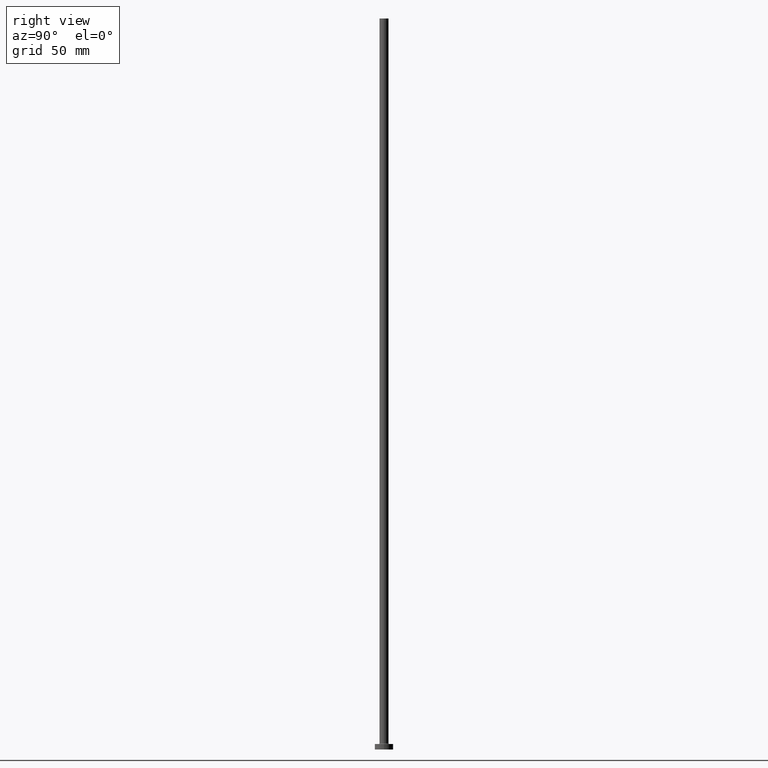
[diagram: clean part render]
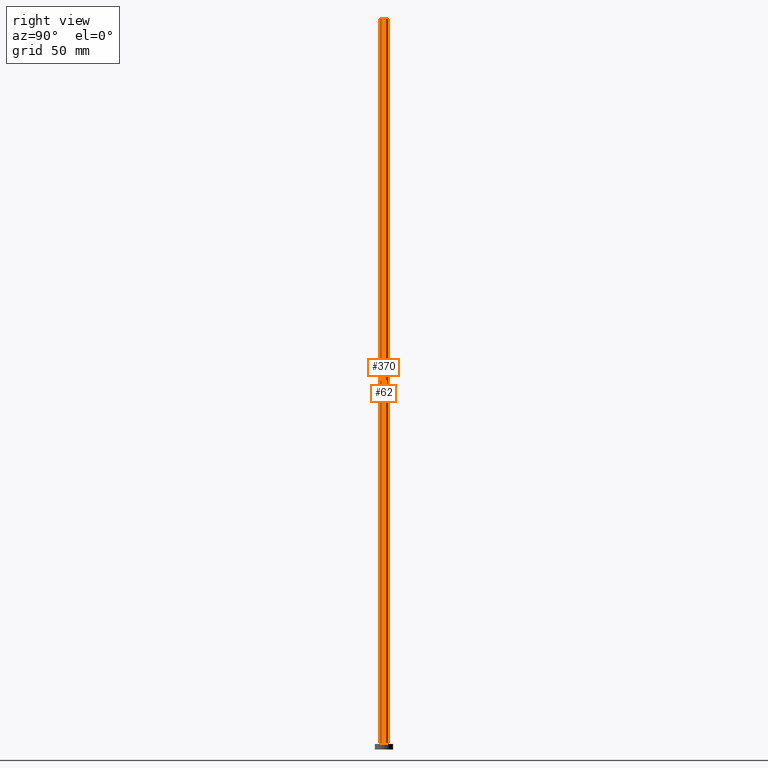
[diagram: same view with one multi-face feature highlighted, each face labeled with its STEP entity id]
A machine part, right view. The highlighted faces form ONE feature: a constant-radius fillet chain: 2 tangent blend faces with common blend radius 2.5 mm. The faces share edges in the B-rep.
Their STEP definitions:
[1] entity #370 (Cylinder):
#6 = VERTEX_POINT ( 'NONE', #350 ) ;
#7 = EDGE_CURVE ( 'NONE', #391, #154, #17, .T. ) ;
#17 = LINE ( 'NONE', #344, #316 ) ;
#25 = FACE_OUTER_BOUND ( 'NONE', #366, .T. ) ;
#26 = CIRCLE ( 'NONE', #170, 2.500000000000000000 ) ;
#27 = CARTESIAN_POINT ( 'NONE',  ( 2.500000000000000000, 3.061616997868383141E-16, 3.300000000000025135 ) ) ;
#45 = ORIENTED_EDGE ( 'NONE', *, *, #438, .T. ) ;
#61 = DIRECTION ( 'NONE',  ( 1.000000000000000000, 0.000000000000000000, 0.000000000000000000 ) ) ;
#69 = DIRECTION ( 'NONE',  ( -0.000000000000000000, -0.000000000000000000, -1.000000000000000000 ) ) ;
#72 = CARTESIAN_POINT ( 'NONE',  ( 0.000000000000000000, 0.000000000000000000, 400.0000000000000000 ) ) ;
#74 = ORIENTED_EDGE ( 'NONE', *, *, #283, .T. ) ;
#76 = DIRECTION ( 'NONE',  ( 1.000000000000000000, 0.000000000000000000, 0.000000000000000000 ) ) ;
#101 = CARTESIAN_POINT ( 'NONE',  ( 0.000000000000000000, 0.000000000000000000, 400.0000000000000000 ) ) ;
#108 = DIRECTION ( 'NONE',  ( -1.000000000000000000, 0.000000000000000000, 0.000000000000000000 ) ) ;
#136 = CARTESIAN_POINT ( 'NONE',  ( 2.500000000000000000, 3.061616997868383141E-16, 400.0000000000000000 ) ) ;
#154 = VERTEX_POINT ( 'NONE', #27 ) ;
#170 = AXIS2_PLACEMENT_3D ( 'NONE', #72, #291, #76 ) ;
#174 = EDGE_CURVE ( 'NONE', #374, #391, #26, .T. ) ;
#177 = ORIENTED_EDGE ( 'NONE', *, *, #7, .F. ) ;
#180 = DIRECTION ( 'NONE',  ( -0.000000000000000000, -0.000000000000000000, -1.000000000000000000 ) ) ;
#197 = AXIS2_PLACEMENT_3D ( 'NONE', #449, #214, #61 ) ;
#200 = LINE ( 'NONE', #388, #281 ) ;
#205 = DIRECTION ( 'NONE',  ( -0.000000000000000000, -0.000000000000000000, -1.000000000000000000 ) ) ;
#211 = CIRCLE ( 'NONE', #197, 2.500000000000000000 ) ;
#214 = DIRECTION ( 'NONE',  ( 0.000000000000000000, 0.000000000000000000, 1.000000000000000000 ) ) ;
#249 = AXIS2_PLACEMENT_3D ( 'NONE', #101, #180, #108 ) ;
#257 = CARTESIAN_POINT ( 'NONE',  ( -2.500000000000000000, 0.000000000000000000, 400.0000000000000000 ) ) ;
#281 = VECTOR ( 'NONE', #69, 1000.000000000000000 ) ;
#283 = EDGE_CURVE ( 'NONE', #374, #6, #200, .T. ) ;
#291 = DIRECTION ( 'NONE',  ( 0.000000000000000000, 0.000000000000000000, 1.000000000000000000 ) ) ;
#316 = VECTOR ( 'NONE', #205, 1000.000000000000000 ) ;
#344 = CARTESIAN_POINT ( 'NONE',  ( 2.500000000000000000, 3.061616997868383141E-16, 400.0000000000000000 ) ) ;
#350 = CARTESIAN_POINT ( 'NONE',  ( -2.500000000000000000, 0.000000000000000000, 3.300000000000025135 ) ) ;
#366 = EDGE_LOOP ( 'NONE', ( #177, #397, #74, #45 ) ) ;
#370 = ADVANCED_FACE ( 'NONE', ( #25 ), #392, .T. ) ;
#374 = VERTEX_POINT ( 'NONE', #257 ) ;
#388 = CARTESIAN_POINT ( 'NONE',  ( -2.500000000000000000, 0.000000000000000000, 400.0000000000000000 ) ) ;
#391 = VERTEX_POINT ( 'NONE', #136 ) ;
#392 = CYLINDRICAL_SURFACE ( 'NONE', #249, 2.500000000000000000 ) ;
#397 = ORIENTED_EDGE ( 'NONE', *, *, #174, .F. ) ;
#438 = EDGE_CURVE ( 'NONE', #6, #154, #211, .T. ) ;
#449 = CARTESIAN_POINT ( 'NONE',  ( 0.000000000000000000, 0.000000000000000000, 3.300000000000025135 ) ) ;
[2] entity #62 (Cylinder):
#6 = VERTEX_POINT ( 'NONE', #350 ) ;
#7 = EDGE_CURVE ( 'NONE', #391, #154, #17, .T. ) ;
#17 = LINE ( 'NONE', #344, #316 ) ;
#19 = ORIENTED_EDGE ( 'NONE', *, *, #297, .T. ) ;
#27 = CARTESIAN_POINT ( 'NONE',  ( 2.500000000000000000, 3.061616997868383141E-16, 3.300000000000025135 ) ) ;
#40 = ORIENTED_EDGE ( 'NONE', *, *, #335, .F. ) ;
#49 = CYLINDRICAL_SURFACE ( 'NONE', #413, 2.500000000000000000 ) ;
#58 = CIRCLE ( 'NONE', #288, 2.500000000000000000 ) ;
#62 = ADVANCED_FACE ( 'NONE', ( #233 ), #49, .T. ) ;
#69 = DIRECTION ( 'NONE',  ( -0.000000000000000000, -0.000000000000000000, -1.000000000000000000 ) ) ;
#98 = DIRECTION ( 'NONE',  ( 0.000000000000000000, 0.000000000000000000, 1.000000000000000000 ) ) ;
#136 = CARTESIAN_POINT ( 'NONE',  ( 2.500000000000000000, 3.061616997868383141E-16, 400.0000000000000000 ) ) ;
#154 = VERTEX_POINT ( 'NONE', #27 ) ;
#161 = CIRCLE ( 'NONE', #216, 2.500000000000000000 ) ;
#164 = CARTESIAN_POINT ( 'NONE',  ( 0.000000000000000000, 0.000000000000000000, 400.0000000000000000 ) ) ;
#198 = ORIENTED_EDGE ( 'NONE', *, *, #7, .T. ) ;
#200 = LINE ( 'NONE', #388, #281 ) ;
#205 = DIRECTION ( 'NONE',  ( -0.000000000000000000, -0.000000000000000000, -1.000000000000000000 ) ) ;
#206 = DIRECTION ( 'NONE',  ( 1.000000000000000000, 0.000000000000000000, 0.000000000000000000 ) ) ;
#216 = AXIS2_PLACEMENT_3D ( 'NONE', #277, #98, #206 ) ;
#233 = FACE_OUTER_BOUND ( 'NONE', #278, .T. ) ;
#236 = CARTESIAN_POINT ( 'NONE',  ( 0.000000000000000000, 0.000000000000000000, 400.0000000000000000 ) ) ;
#257 = CARTESIAN_POINT ( 'NONE',  ( -2.500000000000000000, 0.000000000000000000, 400.0000000000000000 ) ) ;
#277 = CARTESIAN_POINT ( 'NONE',  ( 0.000000000000000000, 0.000000000000000000, 3.300000000000025135 ) ) ;
#278 = EDGE_LOOP ( 'NONE', ( #40, #198, #19, #310 ) ) ;
#281 = VECTOR ( 'NONE', #69, 1000.000000000000000 ) ;
#283 = EDGE_CURVE ( 'NONE', #374, #6, #200, .T. ) ;
#284 = DIRECTION ( 'NONE',  ( -1.000000000000000000, 0.000000000000000000, 0.000000000000000000 ) ) ;
#288 = AXIS2_PLACEMENT_3D ( 'NONE', #164, #314, #441 ) ;
#297 = EDGE_CURVE ( 'NONE', #154, #6, #161, .T. ) ;
#310 = ORIENTED_EDGE ( 'NONE', *, *, #283, .F. ) ;
#314 = DIRECTION ( 'NONE',  ( 0.000000000000000000, 0.000000000000000000, 1.000000000000000000 ) ) ;
#316 = VECTOR ( 'NONE', #205, 1000.000000000000000 ) ;
#318 = DIRECTION ( 'NONE',  ( -0.000000000000000000, -0.000000000000000000, -1.000000000000000000 ) ) ;
#335 = EDGE_CURVE ( 'NONE', #391, #374, #58, .T. ) ;
#344 = CARTESIAN_POINT ( 'NONE',  ( 2.500000000000000000, 3.061616997868383141E-16, 400.0000000000000000 ) ) ;
#350 = CARTESIAN_POINT ( 'NONE',  ( -2.500000000000000000, 0.000000000000000000, 3.300000000000025135 ) ) ;
#374 = VERTEX_POINT ( 'NONE', #257 ) ;
#388 = CARTESIAN_POINT ( 'NONE',  ( -2.500000000000000000, 0.000000000000000000, 400.0000000000000000 ) ) ;
#391 = VERTEX_POINT ( 'NONE', #136 ) ;
#413 = AXIS2_PLACEMENT_3D ( 'NONE', #236, #318, #284 ) ;
#441 = DIRECTION ( 'NONE',  ( 1.000000000000000000, 0.000000000000000000, 0.000000000000000000 ) ) ;